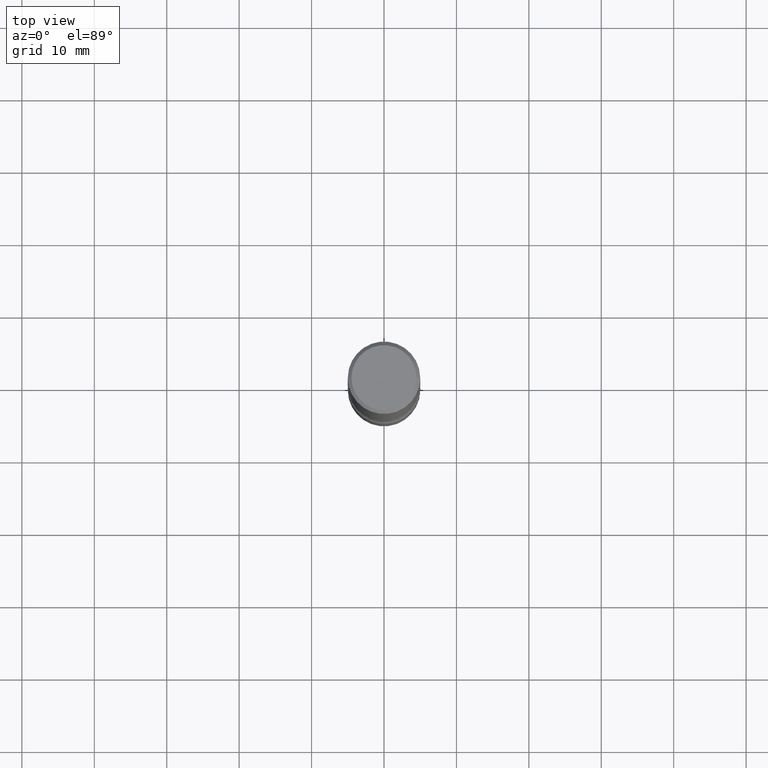
[diagram: clean part render]
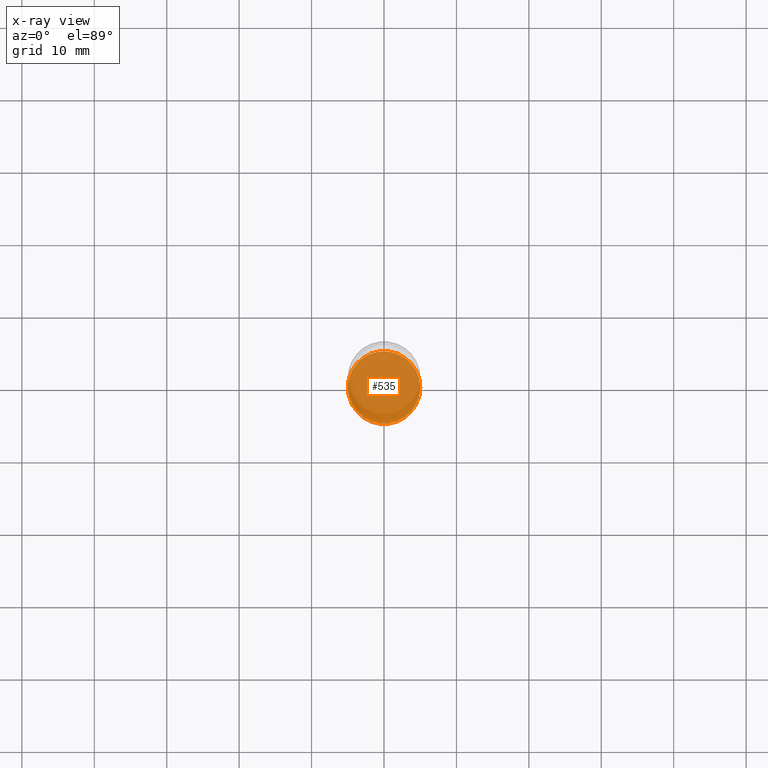
[diagram: x-ray — body ghosted, one internal face saturated and labeled with its STEP entity id]
A machine part, top view, then the same camera in x-ray: the body is ghosted and one INTERNAL B-rep face — a face not visible from any outside direction — is saturated and labeled: STEP entity #535.
In plain terms, the highlighted planar face has unit normal (0, -0, -1).
Its self-contained STEP definition (entity closure, byte-faithful):
#6 = EDGE_CURVE ( 'NONE', #375, #53, #462, .T. ) ;
#15 = FACE_OUTER_BOUND ( 'NONE', #156, .T. ) ;
#33 = AXIS2_PLACEMENT_3D ( 'NONE', #99, #501, #354 ) ;
#53 = VERTEX_POINT ( 'NONE', #356 ) ;
#99 = CARTESIAN_POINT ( 'NONE',  ( 7.509790156913936305E-29, -1.072199004345341739E-14, -3.070900000000000407 ) ) ;
#103 = DIRECTION ( 'NONE',  ( -2.445468806185136597E-29, 3.491481338843145583E-15, 1.000000000000000000 ) ) ;
#106 = EDGE_CURVE ( 'NONE', #53, #375, #181, .T. ) ;
#156 = EDGE_LOOP ( 'NONE', ( #475, #340 ) ) ;
#181 = CIRCLE ( 'NONE', #292, 0.1968500000000001915 ) ;
#187 = DIRECTION ( 'NONE',  ( 1.000000000000000000, -6.982962677686272233E-15, 0.000000000000000000 ) ) ;
#203 = AXIS2_PLACEMENT_3D ( 'NONE', #267, #478, #444 ) ;
#228 = PLANE ( 'NONE',  #203 ) ;
#267 = CARTESIAN_POINT ( 'NONE',  ( 7.509790156913936305E-29, -1.072199004345341739E-14, -3.070900000000000407 ) ) ;
#292 = AXIS2_PLACEMENT_3D ( 'NONE', #442, #103, #187 ) ;
#340 = ORIENTED_EDGE ( 'NONE', *, *, #106, .T. ) ;
#354 = DIRECTION ( 'NONE',  ( 1.000000000000000000, -6.982962677686272233E-15, 0.000000000000000000 ) ) ;
#356 = CARTESIAN_POINT ( 'NONE',  ( -0.1968500000000001915, -1.073209938833286663E-14, -3.070900000000000407 ) ) ;
#375 = VERTEX_POINT ( 'NONE', #466 ) ;
#442 = CARTESIAN_POINT ( 'NONE',  ( 7.509790156913936305E-29, -1.072199004345341739E-14, -3.070900000000000407 ) ) ;
#444 = DIRECTION ( 'NONE',  ( -1.000000000000000000, 6.982962677686265922E-15, -4.876176775795935793E-29 ) ) ;
#462 = CIRCLE ( 'NONE', #33, 0.1968500000000001915 ) ;
#466 = CARTESIAN_POINT ( 'NONE',  ( 0.1968500000000001915, -1.209658624655596058E-14, -3.070900000000000407 ) ) ;
#475 = ORIENTED_EDGE ( 'NONE', *, *, #6, .T. ) ;
#478 = DIRECTION ( 'NONE',  ( 2.438088387897960049E-29, -3.491481338843145188E-15, -1.000000000000000000 ) ) ;
#501 = DIRECTION ( 'NONE',  ( -2.445468806185136597E-29, 3.491481338843145583E-15, 1.000000000000000000 ) ) ;
#535 = ADVANCED_FACE ( 'NONE', ( #15 ), #228, .F. ) ;